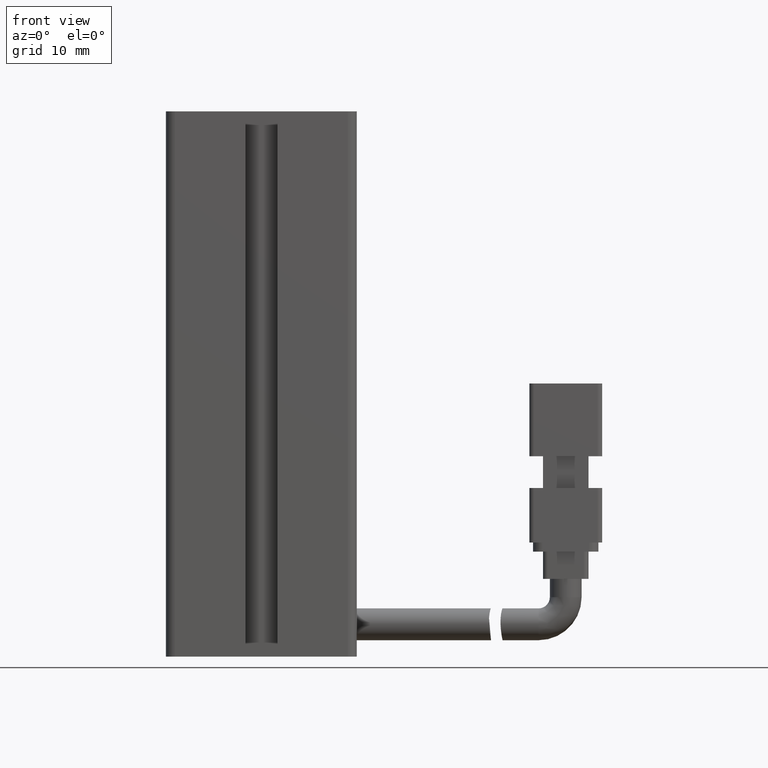
[diagram: clean part render]
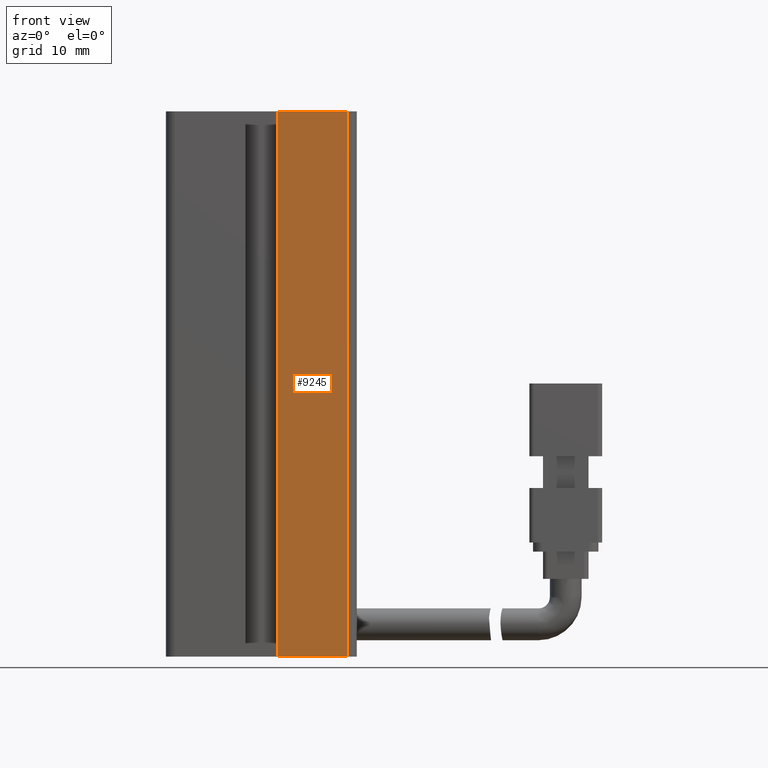
[diagram: same view with one face highlighted and labeled with its STEP entity id]
A machine part, front view. The second image highlights one B-rep face of the part: STEP entity #9245.
In plain terms, the highlighted planar face has unit normal (-0, 1, 0).
Its self-contained STEP definition (entity closure, byte-faithful):
#19 = DIRECTION ( 'NONE',  ( 1.000000000000000000, 0.0000000000000000000, 0.0000000000000000000 ) ) ;
#288 = VERTEX_POINT ( 'NONE', #4007 ) ;
#1974 = DIRECTION ( 'NONE',  ( -0.0000000000000000000, -0.0000000000000000000, -1.000000000000000000 ) ) ;
#2712 = CARTESIAN_POINT ( 'NONE',  ( 39.92537974683542500, 7.083797468354437600, -145.0000000000000300 ) ) ;
#4007 = CARTESIAN_POINT ( 'NONE',  ( 32.17537974683542500, 7.083797468354436700, -145.0000000000000300 ) ) ;
#4774 = DIRECTION ( 'NONE',  ( 0.0000000000000000000, 0.0000000000000000000, 1.000000000000000000 ) ) ;
#5073 = LINE ( 'NONE', #14517, #10218 ) ;
#5858 = DIRECTION ( 'NONE',  ( -1.000000000000000000, -6.262171931974768300E-017, 0.0000000000000000000 ) ) ;
#6067 = ORIENTED_EDGE ( 'NONE', *, *, #23729, .F. ) ;
#7152 = CARTESIAN_POINT ( 'NONE',  ( 32.17537974683542500, 7.083797468354436700, -85.00000000000000000 ) ) ;
#8263 = EDGE_CURVE ( 'NONE', #288, #13849, #14764, .T. ) ;
#9201 = AXIS2_PLACEMENT_3D ( 'NONE', #25526, #25713, #5858 ) ;
#9245 = ADVANCED_FACE ( 'NONE', ( #23282 ), #21059, .F. ) ;
#9438 = ORIENTED_EDGE ( 'NONE', *, *, #8263, .T. ) ;
#9626 = EDGE_LOOP ( 'NONE', ( #6067, #16388, #23420, #9438 ) ) ;
#10218 = VECTOR ( 'NONE', #16944, 1000.000000000000000 ) ;
#11256 = VERTEX_POINT ( 'NONE', #7152 ) ;
#11456 = EDGE_CURVE ( 'NONE', #11256, #21720, #5073, .T. ) ;
#13849 = VERTEX_POINT ( 'NONE', #2712 ) ;
#14517 = CARTESIAN_POINT ( 'NONE',  ( 40.92537974683542500, 7.083797468354436700, -85.00000000000000000 ) ) ;
#14764 = LINE ( 'NONE', #28293, #23763 ) ;
#16388 = ORIENTED_EDGE ( 'NONE', *, *, #11456, .F. ) ;
#16944 = DIRECTION ( 'NONE',  ( 1.000000000000000000, 0.0000000000000000000, 0.0000000000000000000 ) ) ;
#17974 = CARTESIAN_POINT ( 'NONE',  ( 32.17537974683542500, 7.083797468354436700, -85.00000000000000000 ) ) ;
#19334 = CARTESIAN_POINT ( 'NONE',  ( 39.92537974683541800, 7.083797468354437600, -85.00000000000000000 ) ) ;
#20856 = LINE ( 'NONE', #19334, #23267 ) ;
#21059 = PLANE ( 'NONE',  #9201 ) ;
#21720 = VERTEX_POINT ( 'NONE', #26661 ) ;
#23267 = VECTOR ( 'NONE', #1974, 1000.000000000000000 ) ;
#23282 = FACE_OUTER_BOUND ( 'NONE', #9626, .T. ) ;
#23420 = ORIENTED_EDGE ( 'NONE', *, *, #23998, .F. ) ;
#23613 = VECTOR ( 'NONE', #4774, 1000.000000000000000 ) ;
#23729 = EDGE_CURVE ( 'NONE', #21720, #13849, #20856, .T. ) ;
#23763 = VECTOR ( 'NONE', #19, 1000.000000000000000 ) ;
#23998 = EDGE_CURVE ( 'NONE', #288, #11256, #26730, .T. ) ;
#25526 = CARTESIAN_POINT ( 'NONE',  ( 40.92537974683542500, 7.083797468354437600, -85.00000000000000000 ) ) ;
#25713 = DIRECTION ( 'NONE',  ( -6.262171931974768300E-017, 1.000000000000000000, 0.0000000000000000000 ) ) ;
#26661 = CARTESIAN_POINT ( 'NONE',  ( 39.92537974683542500, 7.083797468354437600, -85.00000000000000000 ) ) ;
#26730 = LINE ( 'NONE', #17974, #23613 ) ;
#28293 = CARTESIAN_POINT ( 'NONE',  ( 40.92537974683542500, 7.083797468354436700, -145.0000000000000300 ) ) ;